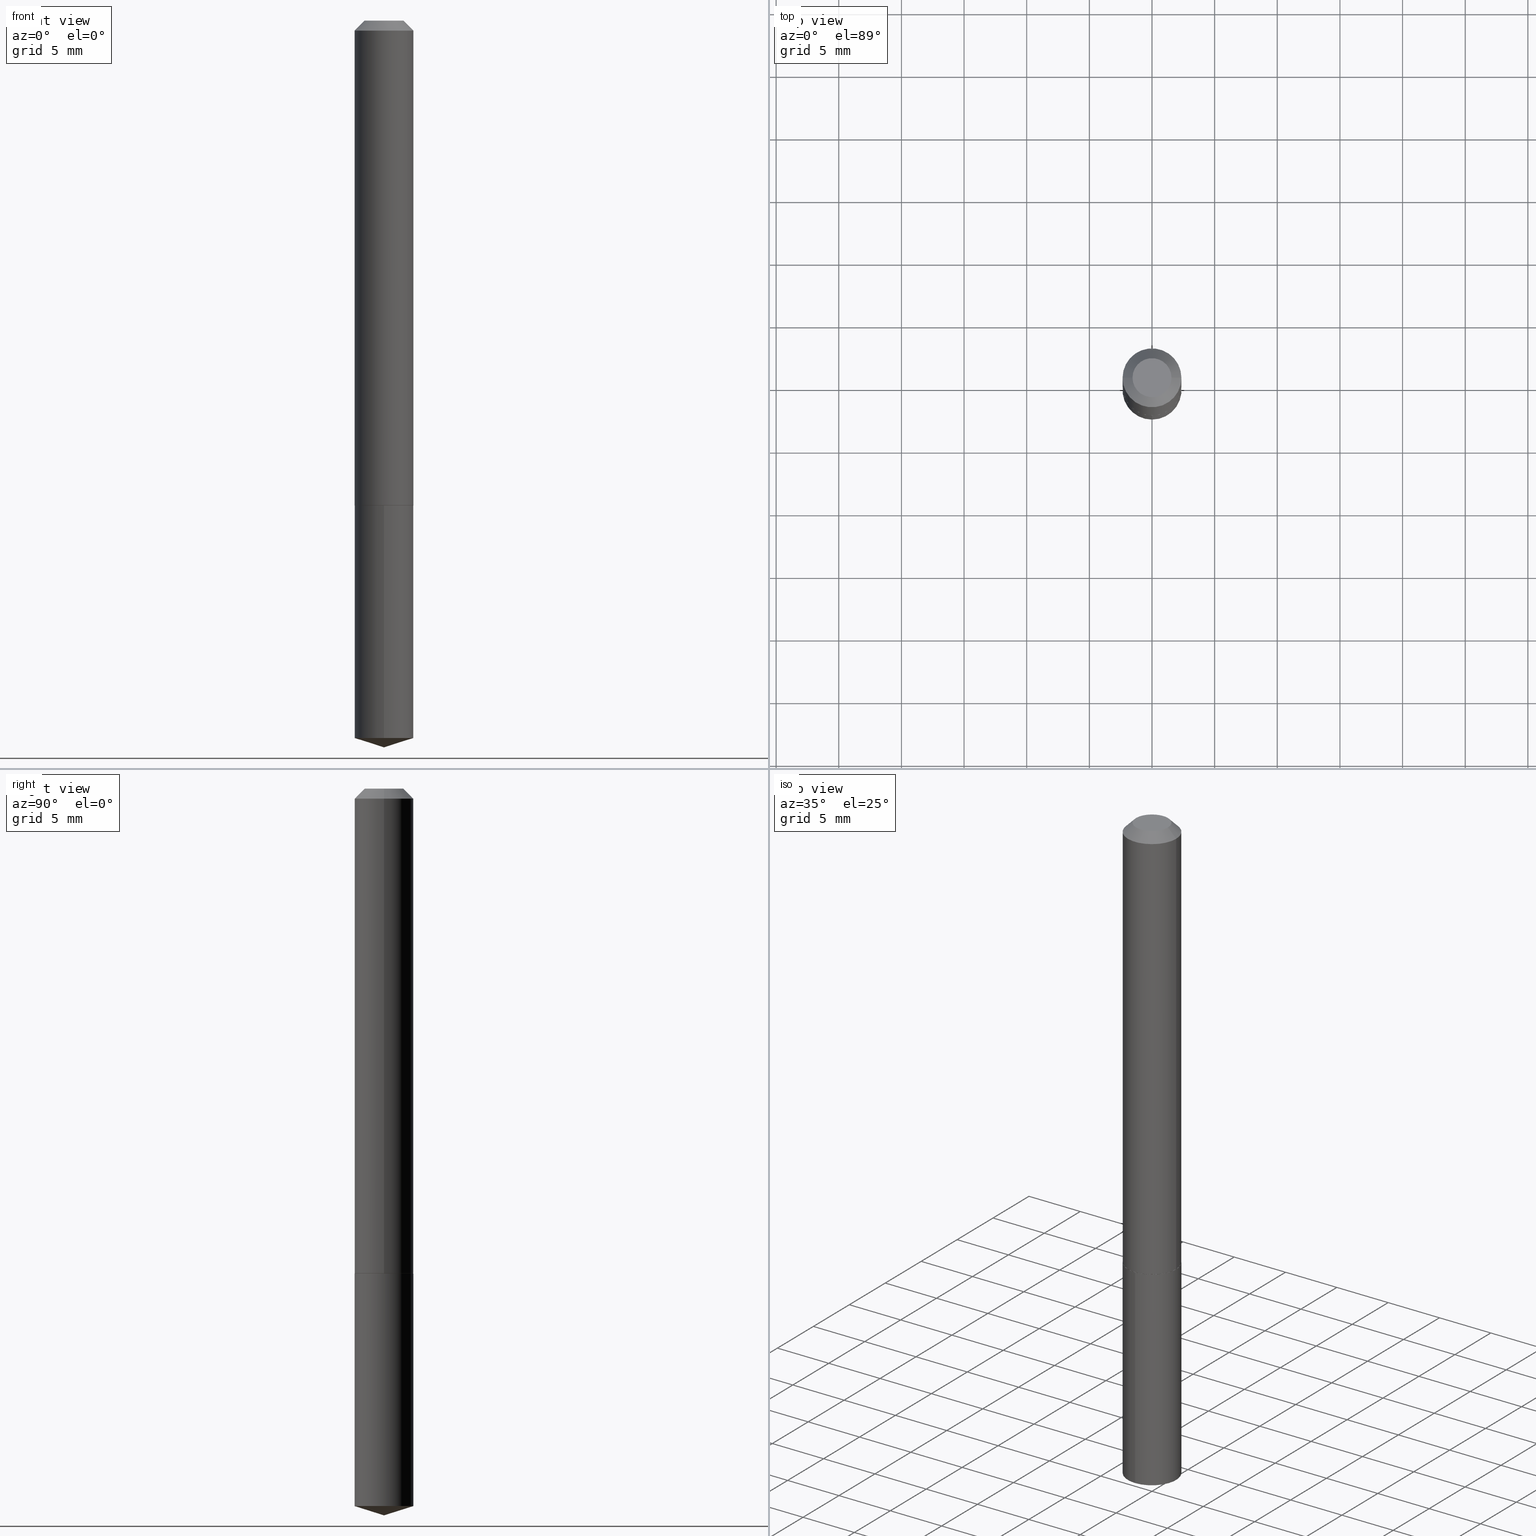
[diagram: canonical four-view strip — front | top / right | iso, engineering-drawing reading convention]
A machine part, canonical four-view strip (front | top / right | iso — engineering-drawing reading convention). The complete STEP part file that produces these views, byte-faithful:
ISO-10303-21;
HEADER;
FILE_DESCRIPTION (( 'STEP AP203' ),
    '1' );
FILE_NAME ('68695.STEP',
    '2024-04-23T13:40:18',
    ( '' ),
    ( '' ),
    'SwSTEP 2.0',
    'SolidWorks 2023',
    '' );
FILE_SCHEMA (( 'CONFIG_CONTROL_DESIGN' ));
ENDSEC;

DATA;
#1 = CARTESIAN_POINT ( 'NONE',  ( 0.000000000000000000, 0.000000000000000000, 0.000000000000000000 ) ) ;
#2 = UNCERTAINTY_MEASURE_WITH_UNIT (LENGTH_MEASURE( 1.000000000000000082E-05 ), #5, 'distance_accuracy_value', 'NONE');
#3 = FACE_OUTER_BOUND ( 'NONE', #69, .T. ) ;
#4 = ADVANCED_FACE ( 'NONE', ( #201 ), #78, .T. ) ;
#5 =( CONVERSION_BASED_UNIT ( 'INCH', #15 ) LENGTH_UNIT ( ) NAMED_UNIT ( #81 ) );
#6 = CIRCLE ( 'NONE', #129, 0.09249999999999999889 ) ;
#7 = VERTEX_POINT ( 'NONE', #26 ) ;
#8 = DIRECTION ( 'NONE',  ( 0.000000000000000000, 0.000000000000000000, 1.000000000000000000 ) ) ;
#9 = ORIENTED_EDGE ( 'NONE', *, *, #87, .T. ) ;
#10 = VERTEX_POINT ( 'NONE', #234 ) ;
#11 = ORIENTED_EDGE ( 'NONE', *, *, #294, .T. ) ;
#12 = CLOSED_SHELL ( 'NONE', ( #108, #236, #152, #135, #311 ) ) ;
#13 = AXIS2_PLACEMENT_3D ( 'NONE', #300, #295, #240 ) ;
#14 = CONICAL_SURFACE ( 'NONE', #79, 0.09249999999999999889, 0.7853981633974449483 ) ;
#15 = LENGTH_MEASURE_WITH_UNIT ( LENGTH_MEASURE( 0.02539999999999999897 ), #181 );
#16 = EDGE_LOOP ( 'NONE', ( #67, #93 ) ) ;
#17 = PERSON_AND_ORGANIZATION_ROLE ( 'creator' ) ;
#18 = DIRECTION ( 'NONE',  ( -6.982962677686265922E-15, -1.000000000000000000, 2.953349182339743999E-15 ) ) ;
#19 = ADVANCED_FACE ( 'NONE', ( #357 ), #204, .F. ) ;
#20 = CARTESIAN_POINT ( 'NONE',  ( 0.09249999999999999889, -7.437048566327158175E-16, -0.03125000000000020817 ) ) ;
#21 = CONICAL_SURFACE ( 'NONE', #238, 0.09250000000000017930, 0.7853981633970383847 ) ;
#22 = CIRCLE ( 'NONE', #334, 0.09250000000000017930 ) ;
#23 = CARTESIAN_POINT ( 'NONE',  ( 3.725916273103674139E-29, -5.319620967861417089E-15, -1.523600000000000065 ) ) ;
#24 = LINE ( 'NONE', #51, #115 ) ;
#25 = PERSON_AND_ORGANIZATION_ROLE ( 'classification_officer' ) ;
#26 = CARTESIAN_POINT ( 'NONE',  ( 0.06125000000000000583, -5.819551794981109879E-16, 2.388061258372631621E-19 ) ) ;
#27 = CONICAL_SURFACE ( 'NONE', #256, 124.8659371009166108, 1.265363707695895235 ) ;
#28 = LINE ( 'NONE', #332, #184 ) ;
#29 = DIRECTION ( 'NONE',  ( -2.445468806185136597E-29, 3.491481338843145583E-15, 1.000000000000000000 ) ) ;
#30 = DIRECTION ( 'NONE',  ( 1.000000000000000000, -6.982962677686272233E-15, 0.000000000000000000 ) ) ;
#31 = DIRECTION ( 'NONE',  ( 6.982962677686265922E-15, 1.000000000000000000, -3.491549371568351150E-15 ) ) ;
#32 = CARTESIAN_POINT ( 'NONE',  ( 5.584265569421684196E-29, -7.972745680656083802E-15, -2.283500000000000085 ) ) ;
#33 = DIRECTION ( 'NONE',  ( -2.445468806185136877E-29, 3.491481338843145188E-15, 1.000000000000000000 ) ) ;
#34 = AXIS2_PLACEMENT_3D ( 'NONE', #324, #330, #292 ) ;
#35 = ORIENTED_EDGE ( 'NONE', *, *, #179, .T. ) ;
#36 =( NAMED_UNIT ( * ) SI_UNIT ( $, .STERADIAN. ) SOLID_ANGLE_UNIT ( ) );
#37 = EDGE_LOOP ( 'NONE', ( #99, #246, #156, #41 ) ) ;
#38 = CARTESIAN_POINT ( 'NONE',  ( -0.09250000000000008216, 6.572520305780932557E-16, -4.550014958485792374E-30 ) ) ;
#39 = ORIENTED_EDGE ( 'NONE', *, *, #282, .T. ) ;
#40 = DATE_TIME_ROLE ( 'creation_date' ) ;
#41 = ORIENTED_EDGE ( 'NONE', *, *, #180, .F. ) ;
#42 = CIRCLE ( 'NONE', #267, 0.09249999999999999889 ) ;
#43 = APPROVAL_PERSON_ORGANIZATION ( #94, #265, #309 ) ;
#44 = ORIENTED_EDGE ( 'NONE', *, *, #196, .T. ) ;
#45 = PERSON ( 'UNSPECIFIED', 'UNSPECIFIED', 'UNSPECIFIED', ('UNSPECIFIED'), ('UNSPECIFIED'), ('UNSPECIFIED') ) ;
#46 = LINE ( 'NONE', #20, #333 ) ;
#47 = APPLICATION_CONTEXT ( 'configuration controlled 3d designs of mechanical parts and assemblies' ) ;
#48 = DIRECTION ( 'NONE',  ( -0.7071067811865451302, 2.468850131082231817E-15, -0.7071067811865499042 ) ) ;
#49 = VECTOR ( 'NONE', #258, 39.37007874015748143 ) ;
#50 = DIRECTION ( 'NONE',  ( -2.445421299187039407E-29, 3.491549371568351150E-15, 1.000000000000000000 ) ) ;
#51 = CARTESIAN_POINT ( 'NONE',  ( 0.09250000000000008216, -6.459240476859802821E-16, 4.510463517611244952E-30 ) ) ;
#52 = DIRECTION ( 'NONE',  ( 1.000000000000000000, -6.982962677686267499E-15, 4.876176775795936353E-29 ) ) ;
#53 = AXIS2_PLACEMENT_3D ( 'NONE', #147, #8, #119 ) ;
#54 = CARTESIAN_POINT ( 'NONE',  ( 0.09250000000000017930, -5.963799274877977150E-15, -1.523100000000000120 ) ) ;
#55 = CARTESIAN_POINT ( 'NONE',  ( -9.069223718349603288E-28, 1.294897243484771574E-13, 37.08657874015747780 ) ) ;
#56 = CARTESIAN_POINT ( 'NONE',  ( 7.642090019328602662E-31, -1.091087918388490267E-16, -0.03125000000000020817 ) ) ;
#57 = CONICAL_SURFACE ( 'NONE', #278, 0.09250000000000017930, 0.7853981633970383847 ) ;
#58 = VECTOR ( 'NONE', #143, 39.37007874015748854 ) ;
#59 = CARTESIAN_POINT ( 'NONE',  ( 0.000000000000000000, 0.000000000000000000, 0.000000000000000000 ) ) ;
#60 = PERSON_AND_ORGANIZATION ( #45, #293 ) ;
#61 = COORDINATED_UNIVERSAL_TIME_OFFSET ( 5, 0, .BEHIND. ) ;
#62 = ORIENTED_EDGE ( 'NONE', *, *, #64, .T. ) ;
#63 = EDGE_LOOP ( 'NONE', ( #120, #277, #187, #312 ) ) ;
#64 = EDGE_CURVE ( 'NONE', #7, #373, #46, .T. ) ;
#65 = ORIENTED_EDGE ( 'NONE', *, *, #336, .F. ) ;
#66 = CALENDAR_DATE ( 2024, 23, 4 ) ;
#67 = ORIENTED_EDGE ( 'NONE', *, *, #291, .T. ) ;
#68 = EDGE_CURVE ( 'NONE', #276, #373, #24, .T. ) ;
#69 = EDGE_LOOP ( 'NONE', ( #225, #222, #308, #123 ) ) ;
#70 = AXIS2_PLACEMENT_3D ( 'NONE', #319, #132, #136 ) ;
#71 = LOCAL_TIME ( 9, 40, 18.00000000000000000, #150 ) ;
#72 = APPROVAL_ROLE ( '' ) ;
#73 = FACE_OUTER_BOUND ( 'NONE', #372, .T. ) ;
#74 = DIRECTION ( 'NONE',  ( -6.982962677686265922E-15, -1.000000000000000000, 2.953349182339743999E-15 ) ) ;
#75 = COORDINATED_UNIVERSAL_TIME_OFFSET ( 5, 0, .BEHIND. ) ;
#76 = DIRECTION ( 'NONE',  ( -2.445468806185136597E-29, 3.491481338843145583E-15, 1.000000000000000000 ) ) ;
#77 = APPROVAL ( #281, 'UNSPECIFIED' ) ;
#78 = CONICAL_SURFACE ( 'NONE', #162, 0.09249999999999999889, 0.7853981633974449483 ) ;
#79 = AXIS2_PLACEMENT_3D ( 'NONE', #374, #125, #92 ) ;
#80 = LINE ( 'NONE', #288, #272 ) ;
#81 = DIMENSIONAL_EXPONENTS ( 1.000000000000000000, 0.000000000000000000, 0.000000000000000000, 0.000000000000000000, 0.000000000000000000, 0.000000000000000000, 0.000000000000000000 ) ;
#82 = ORIENTED_EDGE ( 'NONE', *, *, #351, .T. ) ;
#83 = DIRECTION ( 'NONE',  ( -6.982962677686265922E-15, -1.000000000000000000, 2.953349182339743999E-15 ) ) ;
#84 = VECTOR ( 'NONE', #33, 39.37007874015748143 ) ;
#85 = CARTESIAN_POINT ( 'NONE',  ( -0.06125000000000000583, 4.822608599277072228E-16, 2.388061258305517296E-19 ) ) ;
#86 = CARTESIAN_POINT ( 'NONE',  ( 3.724693538700582458E-29, -5.317875227191995586E-15, -1.523100000000000120 ) ) ;
#87 = EDGE_CURVE ( 'NONE', #178, #303, #220, .T. ) ;
#88 = CARTESIAN_POINT ( 'NONE',  ( 7.642090019328602662E-31, -1.091087918388490267E-16, -0.03125000000000020817 ) ) ;
#89 = AXIS2_PLACEMENT_3D ( 'NONE', #59, #331, #209 ) ;
#90 = DIRECTION ( 'NONE',  ( 1.000000000000000000, -6.982962677686266711E-15, 0.000000000000000000 ) ) ;
#91 = ORIENTED_EDGE ( 'NONE', *, *, #339, .T. ) ;
#92 = DIRECTION ( 'NONE',  ( -1.000000000000000000, 6.982962677686266711E-15, 0.000000000000000000 ) ) ;
#93 = ORIENTED_EDGE ( 'NONE', *, *, #208, .T. ) ;
#94 = PERSON_AND_ORGANIZATION ( #45, #293 ) ;
#95 = CC_DESIGN_DATE_AND_TIME_ASSIGNMENT ( #353, #131, ( #163 ) ) ;
#96 = ORIENTED_EDGE ( 'NONE', *, *, #366, .T. ) ;
#97 = AXIS2_PLACEMENT_3D ( 'NONE', #140, #263, #174 ) ;
#98 = PERSON_AND_ORGANIZATION ( #45, #293 ) ;
#99 = ORIENTED_EDGE ( 'NONE', *, *, #325, .T. ) ;
#100 = VERTEX_POINT ( 'NONE', #159 ) ;
#101 = CARTESIAN_POINT ( 'NONE',  ( -0.09249999999999999889, 5.368152558471306884E-16, -0.03125000000000020817 ) ) ;
#102 = DIRECTION ( 'NONE',  ( -2.445421299187039407E-29, 3.491549371568351150E-15, 1.000000000000000000 ) ) ;
#103 = CYLINDRICAL_SURFACE ( 'NONE', #365, 0.09249999999999999889 ) ;
#104 = CARTESIAN_POINT ( 'NONE',  ( 3.724693538700582458E-29, -5.317875227191995586E-15, -1.523100000000000120 ) ) ;
#105 = CC_DESIGN_SECURITY_CLASSIFICATION ( #163, ( #341 ) ) ;
#106 = DIRECTION ( 'NONE',  ( 1.000000000000000000, -6.982962677686272233E-15, 0.000000000000000000 ) ) ;
#107 = EDGE_CURVE ( 'NONE', #271, #276, #299, .T. ) ;
#108 = ADVANCED_FACE ( 'NONE', ( #73 ), #377, .T. ) ;
#109 = FACE_OUTER_BOUND ( 'NONE', #315, .T. ) ;
#110 = DIRECTION ( 'NONE',  ( -2.445468806185136597E-29, 3.491481338843145583E-15, 1.000000000000000000 ) ) ;
#111 = VECTOR ( 'NONE', #48, 39.37007874015748143 ) ;
#112 = FACE_OUTER_BOUND ( 'NONE', #350, .T. ) ;
#113 = LINE ( 'NONE', #32, #58 ) ;
#114 = CARTESIAN_POINT ( 'NONE',  ( -6.459240476859423182E-16, -0.09250000000000532796, -1.523599999999999843 ) ) ;
#115 = VECTOR ( 'NONE', #327, 39.37007874015748143 ) ;
#116 = CIRCLE ( 'NONE', #13, 0.09249999999999999889 ) ;
#117 = ORIENTED_EDGE ( 'NONE', *, *, #68, .F. ) ;
#118 = ADVANCED_FACE ( 'NONE', ( #317 ), #57, .T. ) ;
#119 = DIRECTION ( 'NONE',  ( 1.000000000000000000, 0.000000000000000000, 0.000000000000000000 ) ) ;
#120 = ORIENTED_EDGE ( 'NONE', *, *, #64, .F. ) ;
#121 = CC_DESIGN_PERSON_AND_ORGANIZATION_ASSIGNMENT ( #166, #25, ( #163 ) ) ;
#122 = APPLICATION_PROTOCOL_DEFINITION ( 'international standard', 'config_control_design', 1994, #211 ) ;
#123 = ORIENTED_EDGE ( 'NONE', *, *, #252, .F. ) ;
#124 = ORIENTED_EDGE ( 'NONE', *, *, #304, .T. ) ;
#125 = DIRECTION ( 'NONE',  ( 2.445468806185136597E-29, -3.491481338843145583E-15, -1.000000000000000000 ) ) ;
#126 = EDGE_LOOP ( 'NONE', ( #259, #343, #249 ) ) ;
#127 = DIRECTION ( 'NONE',  ( -6.982962677686267499E-15, -1.000000000000000000, 3.500519750498661045E-15 ) ) ;
#128 = CARTESIAN_POINT ( 'NONE',  ( -0.09250000000000017930, -4.660623196613901936E-15, -1.523100000000000120 ) ) ;
#129 = AXIS2_PLACEMENT_3D ( 'NONE', #56, #298, #90 ) ;
#130 =( GEOMETRIC_REPRESENTATION_CONTEXT ( 3 ) GLOBAL_UNCERTAINTY_ASSIGNED_CONTEXT ( ( #2 ) ) GLOBAL_UNIT_ASSIGNED_CONTEXT ( ( #5, #182, #36 ) ) REPRESENTATION_CONTEXT ( 'NONE', 'WORKASPACE' ) );
#131 = DATE_TIME_ROLE ( 'classification_date' ) ;
#132 = DIRECTION ( 'NONE',  ( 2.438088387897960049E-29, -3.491481338843145188E-15, -1.000000000000000000 ) ) ;
#133 = DIRECTION ( 'NONE',  ( -6.982962677686265922E-15, -1.000000000000000000, 2.953349182339743999E-15 ) ) ;
#134 = APPROVAL_DATE_TIME ( #257, #190 ) ;
#135 = ADVANCED_FACE ( 'NONE', ( #157 ), #103, .T. ) ;
#136 = DIRECTION ( 'NONE',  ( -1.000000000000000000, 6.982962677686265922E-15, -4.876176775795935793E-29 ) ) ;
#137 = CC_DESIGN_APPROVAL ( #265, ( #341 ) ) ;
#138 = DIRECTION ( 'NONE',  ( -6.982962677686267499E-15, -1.000000000000000000, 3.500519750498661045E-15 ) ) ;
#139 = PLANE ( 'NONE',  #329 ) ;
#140 = CARTESIAN_POINT ( 'NONE',  ( -5.839929314523175409E-48, 8.337871319499082469E-34, 2.388061258337334140E-19 ) ) ;
#141 = LOCAL_TIME ( 9, 40, 18.00000000000000000, #75 ) ;
#142 = DIRECTION ( 'NONE',  ( -2.445421299187039407E-29, 3.491549371568351150E-15, 1.000000000000000000 ) ) ;
#143 = DIRECTION ( 'NONE',  ( 6.776566513254265237E-15, 0.9537169507482298192, 0.3007057995042637932 ) ) ;
#144 = DIRECTION ( 'NONE',  ( -2.445468806185136597E-29, 3.491481338843145583E-15, 1.000000000000000000 ) ) ;
#145 = AXIS2_PLACEMENT_3D ( 'NONE', #286, #384, #165 ) ;
#146 = APPROVAL_PERSON_ORGANIZATION ( #158, #190, #72 ) ;
#147 = CARTESIAN_POINT ( 'NONE',  ( 0.000000000000000000, 0.000000000000000000, 0.000000000000000000 ) ) ;
#148 = ORIENTED_EDGE ( 'NONE', *, *, #179, .F. ) ;
#149 = MANIFOLD_SOLID_BREP ( 'Body-Move/Copy2[1]', #12 ) ;
#150 = COORDINATED_UNIVERSAL_TIME_OFFSET ( 5, 0, .BEHIND. ) ;
#151 = ORIENTED_EDGE ( 'NONE', *, *, #167, .F. ) ;
#152 = ADVANCED_FACE ( 'NONE', ( #323 ), #383, .T. ) ;
#153 = PERSON_AND_ORGANIZATION ( #45, #293 ) ;
#154 = VERTEX_POINT ( 'NONE', #255 ) ;
#155 = APPROVAL_DATE_TIME ( #191, #265 ) ;
#156 = ORIENTED_EDGE ( 'NONE', *, *, #366, .F. ) ;
#157 = FACE_OUTER_BOUND ( 'NONE', #338, .T. ) ;
#158 = PERSON_AND_ORGANIZATION ( #45, #293 ) ;
#159 = CARTESIAN_POINT ( 'NONE',  ( -0.09200000000000041478, -4.663272423788011559E-15, -1.523600000000000287 ) ) ;
#160 = EDGE_CURVE ( 'NONE', #273, #219, #232, .T. ) ;
#161 = DIRECTION ( 'NONE',  ( -2.445421299187039407E-29, 3.491549371568351150E-15, 1.000000000000000000 ) ) ;
#162 = AXIS2_PLACEMENT_3D ( 'NONE', #290, #260, #382 ) ;
#163 = SECURITY_CLASSIFICATION ( '', '', #254 ) ;
#164 = CC_DESIGN_PERSON_AND_ORGANIZATION_ASSIGNMENT ( #153, #302, ( #322 ) ) ;
#165 = DIRECTION ( 'NONE',  ( 1.000000000000000000, -6.982962677686272233E-15, 0.000000000000000000 ) ) ;
#166 = PERSON_AND_ORGANIZATION ( #45, #293 ) ;
#167 = EDGE_CURVE ( 'NONE', #100, #271, #229, .T. ) ;
#168 = ORIENTED_EDGE ( 'NONE', *, *, #87, .F. ) ;
#169 = DIRECTION ( 'NONE',  ( -2.445468806185136597E-29, 3.491481338843145583E-15, 1.000000000000000000 ) ) ;
#170 = AXIS2_PLACEMENT_3D ( 'NONE', #1, #110, #52 ) ;
#171 = CC_DESIGN_APPROVAL ( #190, ( #163 ) ) ;
#172 = PLANE ( 'NONE',  #305 ) ;
#173 = CYLINDRICAL_SURFACE ( 'NONE', #170, 0.09250000000000008216 ) ;
#174 = DIRECTION ( 'NONE',  ( 1.000000000000000000, -6.982962677686267499E-15, 4.876190086226892022E-29 ) ) ;
#175 = CLOSED_SHELL ( 'NONE', ( #388, #213, #274, #253, #118, #215, #4, #19 ) ) ;
#176 = LOCAL_TIME ( 9, 40, 18.00000000000000000, #318 ) ;
#177 = FACE_OUTER_BOUND ( 'NONE', #218, .T. ) ;
#178 = VERTEX_POINT ( 'NONE', #289 ) ;
#179 = EDGE_CURVE ( 'NONE', #375, #178, #356, .T. ) ;
#180 = EDGE_CURVE ( 'NONE', #310, #276, #80, .T. ) ;
#181 =( LENGTH_UNIT ( ) NAMED_UNIT ( * ) SI_UNIT ( $, .METRE. ) );
#182 =( NAMED_UNIT ( * ) PLANE_ANGLE_UNIT ( ) SI_UNIT ( $, .RADIAN. ) );
#183 = ORIENTED_EDGE ( 'NONE', *, *, #326, .T. ) ;
#184 = VECTOR ( 'NONE', #241, 39.37007874015748854 ) ;
#185 = AXIS2_PLACEMENT_3D ( 'NONE', #367, #342, #369 ) ;
#186 = APPROVAL_DATE_TIME ( #245, #77 ) ;
#187 = ORIENTED_EDGE ( 'NONE', *, *, #160, .T. ) ;
#188 = APPLICATION_PROTOCOL_DEFINITION ( 'international standard', 'config_control_design', 1994, #47 ) ;
#189 = ORIENTED_EDGE ( 'NONE', *, *, #227, .F. ) ;
#190 = APPROVAL ( #376, 'UNSPECIFIED' ) ;
#191 = DATE_AND_TIME ( #66, #314 ) ;
#192 = ORIENTED_EDGE ( 'NONE', *, *, #107, .F. ) ;
#193 = PERSON_AND_ORGANIZATION_ROLE ( 'design_supplier' ) ;
#194 = LOCAL_TIME ( 9, 40, 18.00000000000000000, #61 ) ;
#195 = ORIENTED_EDGE ( 'NONE', *, *, #326, .F. ) ;
#196 = EDGE_CURVE ( 'NONE', #375, #10, #42, .T. ) ;
#197 = DIRECTION ( 'NONE',  ( -6.982962677686265922E-15, -1.000000000000000000, 2.953349182339743999E-15 ) ) ;
#198 = PERSON_AND_ORGANIZATION ( #45, #293 ) ;
#199 = DIRECTION ( 'NONE',  ( -2.445421299187039407E-29, 3.491549371568351150E-15, 1.000000000000000000 ) ) ;
#200 = PRODUCT_RELATED_PRODUCT_CATEGORY ( 'detail', '', ( #322 ) ) ;
#201 = FACE_OUTER_BOUND ( 'NONE', #63, .T. ) ;
#202 = CARTESIAN_POINT ( 'NONE',  ( -9.069223718349603288E-28, 1.294897243484771574E-13, 37.08657874015747780 ) ) ;
#203 = CC_DESIGN_PERSON_AND_ORGANIZATION_ASSIGNMENT ( #198, #193, ( #341 ) ) ;
#204 = PLANE ( 'NONE',  #70 ) ;
#205 = CARTESIAN_POINT ( 'NONE',  ( -0.09250000000000017930, -4.660623196613901936E-15, -1.523100000000000120 ) ) ;
#206 = CIRCLE ( 'NONE', #34, 0.06125000000000000583 ) ;
#207 = CARTESIAN_POINT ( 'NONE',  ( -6.459240476859423182E-16, -0.09250000000000532796, -1.523599999999999843 ) ) ;
#208 = EDGE_CURVE ( 'NONE', #7, #273, #206, .T. ) ;
#209 = DIRECTION ( 'NONE',  ( 1.000000000000000000, -6.982962677686267499E-15, 4.876176775795936353E-29 ) ) ;
#210 = CC_DESIGN_PERSON_AND_ORGANIZATION_ASSIGNMENT ( #60, #307, ( #355 ) ) ;
#211 = APPLICATION_CONTEXT ( 'configuration controlled 3d designs of mechanical parts and assemblies' ) ;
#212 = CARTESIAN_POINT ( 'NONE',  ( 3.725916273103675260E-29, -5.319620967861417878E-15, -1.523600000000000287 ) ) ;
#213 = ADVANCED_FACE ( 'NONE', ( #177 ), #173, .T. ) ;
#214 = VECTOR ( 'NONE', #102, 39.37007874015748143 ) ;
#215 = ADVANCED_FACE ( 'NONE', ( #3 ), #297, .T. ) ;
#216 = FACE_OUTER_BOUND ( 'NONE', #126, .T. ) ;
#217 = FACE_OUTER_BOUND ( 'NONE', #244, .T. ) ;
#218 = EDGE_LOOP ( 'NONE', ( #96, #91, #226, #117 ) ) ;
#219 = VERTEX_POINT ( 'NONE', #268 ) ;
#220 = CIRCLE ( 'NONE', #347, 0.09249999999999999889 ) ;
#221 = APPROVAL_STATUS ( 'not_yet_approved' ) ;
#222 = ORIENTED_EDGE ( 'NONE', *, *, #107, .T. ) ;
#223 = CC_DESIGN_PERSON_AND_ORGANIZATION_ASSIGNMENT ( #228, #17, ( #341 ) ) ;
#224 = COORDINATED_UNIVERSAL_TIME_OFFSET ( 5, 0, .BEHIND. ) ;
#225 = ORIENTED_EDGE ( 'NONE', *, *, #339, .F. ) ;
#226 = ORIENTED_EDGE ( 'NONE', *, *, #304, .F. ) ;
#227 = EDGE_CURVE ( 'NONE', #303, #178, #378, .T. ) ;
#228 = PERSON_AND_ORGANIZATION ( #45, #293 ) ;
#229 = LINE ( 'NONE', #128, #49 ) ;
#230 = DIRECTION ( 'NONE',  ( 0.7071067811865451302, -7.319954787623248157E-15, -0.7071067811865499042 ) ) ;
#231 = DIRECTION ( 'NONE',  ( 0.7071067811862576935, -2.468850131079221129E-15, 0.7071067811868373409 ) ) ;
#232 = LINE ( 'NONE', #101, #111 ) ;
#233 = CC_DESIGN_APPROVAL ( #77, ( #355 ) ) ;
#234 = CARTESIAN_POINT ( 'NONE',  ( -6.459240476859242730E-16, -0.09250000000000783984, -2.254334862028694708 ) ) ;
#235 = DIRECTION ( 'NONE',  ( -2.438088387897960049E-29, 3.491481338843145188E-15, 1.000000000000000000 ) ) ;
#236 = ADVANCED_FACE ( 'NONE', ( #216 ), #27, .T. ) ;
#237 = DIRECTION ( 'NONE',  ( 1.000000000000000000, -6.982962677686269866E-15, 0.000000000000000000 ) ) ;
#238 = AXIS2_PLACEMENT_3D ( 'NONE', #86, #169, #30 ) ;
#239 = CIRCLE ( 'NONE', #321, 0.09200000000000041478 ) ;
#240 = DIRECTION ( 'NONE',  ( -6.982962677686265922E-15, -1.000000000000000000, 2.953349182339743999E-15 ) ) ;
#241 = DIRECTION ( 'NONE',  ( -6.659769872151639188E-15, -0.9537169507482275987, 0.3007057995042703991 ) ) ;
#242 = LINE ( 'NONE', #207, #306 ) ;
#243 = MECHANICAL_CONTEXT ( 'NONE', #47, 'mechanical' ) ;
#244 = EDGE_LOOP ( 'NONE', ( #346, #62, #124, #248 ) ) ;
#245 = DATE_AND_TIME ( #371, #194 ) ;
#246 = ORIENTED_EDGE ( 'NONE', *, *, #167, .T. ) ;
#247 = DATE_AND_TIME ( #275, #71 ) ;
#248 = ORIENTED_EDGE ( 'NONE', *, *, #160, .F. ) ;
#249 = ORIENTED_EDGE ( 'NONE', *, *, #294, .F. ) ;
#250 = CARTESIAN_POINT ( 'NONE',  ( 6.572520305781474899E-16, 0.09249999999999210243, -2.254334862028695152 ) ) ;
#251 = ORIENTED_EDGE ( 'NONE', *, *, #351, .F. ) ;
#252 = EDGE_CURVE ( 'NONE', #219, #373, #6, .T. ) ;
#253 = ADVANCED_FACE ( 'NONE', ( #112 ), #172, .F. ) ;
#254 = SECURITY_CLASSIFICATION_LEVEL ( 'unclassified' ) ;
#255 = CARTESIAN_POINT ( 'NONE',  ( 5.584119536693605693E-29, -7.972952989976330789E-15, -2.283500000000000085 ) ) ;
#256 = AXIS2_PLACEMENT_3D ( 'NONE', #55, #328, #138 ) ;
#257 = DATE_AND_TIME ( #381, #141 ) ;
#258 = DIRECTION ( 'NONE',  ( -0.7071067811862576935, 7.493145998869306553E-15, 0.7071067811868373409 ) ) ;
#259 = ORIENTED_EDGE ( 'NONE', *, *, #282, .F. ) ;
#260 = DIRECTION ( 'NONE',  ( 2.445468806185136597E-29, -3.491481338843145583E-15, -1.000000000000000000 ) ) ;
#261 = CARTESIAN_POINT ( 'NONE',  ( 3.725916273103674139E-29, -5.319620967861417089E-15, -1.523600000000000065 ) ) ;
#262 = CIRCLE ( 'NONE', #361, 0.09249999999999999889 ) ;
#263 = DIRECTION ( 'NONE',  ( -2.445468806185136597E-29, 3.491481338843145583E-15, 1.000000000000000000 ) ) ;
#264 = CARTESIAN_POINT ( 'NONE',  ( 3.725916273103674139E-29, -5.319620967861417089E-15, -1.523600000000000065 ) ) ;
#265 = APPROVAL ( #221, 'UNSPECIFIED' ) ;
#266 = DIRECTION ( 'NONE',  ( 2.445421299187039127E-29, -3.491549371568351150E-15, -1.000000000000000000 ) ) ;
#267 = AXIS2_PLACEMENT_3D ( 'NONE', #354, #50, #133 ) ;
#268 = CARTESIAN_POINT ( 'NONE',  ( -0.09249999999999999889, -2.056239978937328693E-15, -0.03125000000000020817 ) ) ;
#269 = LINE ( 'NONE', #38, #84 ) ;
#270 = CARTESIAN_POINT ( 'NONE',  ( 0.09249999999999999889, -7.550328395248287911E-16, -0.03125000000000020817 ) ) ;
#271 = VERTEX_POINT ( 'NONE', #205 ) ;
#272 = VECTOR ( 'NONE', #231, 39.37007874015748143 ) ;
#273 = VERTEX_POINT ( 'NONE', #85 ) ;
#274 = ADVANCED_FACE ( 'NONE', ( #386 ), #21, .T. ) ;
#275 = CALENDAR_DATE ( 2024, 23, 4 ) ;
#276 = VERTEX_POINT ( 'NONE', #54 ) ;
#277 = ORIENTED_EDGE ( 'NONE', *, *, #291, .F. ) ;
#278 = AXIS2_PLACEMENT_3D ( 'NONE', #104, #76, #106 ) ;
#279 = CIRCLE ( 'NONE', #97, 0.06125000000000000583 ) ;
#280 = PRODUCT_DEFINITION_SHAPE ( 'NONE', 'NONE',  #355 ) ;
#281 = APPROVAL_STATUS ( 'not_yet_approved' ) ;
#282 = EDGE_CURVE ( 'NONE', #154, #10, #28, .T. ) ;
#283 = EDGE_LOOP ( 'NONE', ( #65, #39, #301 ) ) ;
#284 = MANIFOLD_SOLID_BREP ( 'Body-Move/Copy2[2]', #175 ) ;
#285 = CARTESIAN_POINT ( 'NONE',  ( 3.725916273103674139E-29, -5.319620967861417089E-15, -1.523600000000000065 ) ) ;
#286 = CARTESIAN_POINT ( 'NONE',  ( 3.724693538700582458E-29, -5.317875227191995586E-15, -1.523100000000000120 ) ) ;
#287 = CIRCLE ( 'NONE', #185, 0.09200000000000041478 ) ;
#288 = CARTESIAN_POINT ( 'NONE',  ( 0.09250000000000017930, -5.963799274877977150E-15, -1.523100000000000120 ) ) ;
#289 = CARTESIAN_POINT ( 'NONE',  ( 6.572520305781478843E-16, 0.09249999999999469757, -1.523600000000000287 ) ) ;
#290 = CARTESIAN_POINT ( 'NONE',  ( 7.642090019328602662E-31, -1.091087918388490267E-16, -0.03125000000000020817 ) ) ;
#291 = EDGE_CURVE ( 'NONE', #273, #7, #279, .T. ) ;
#292 = DIRECTION ( 'NONE',  ( 1.000000000000000000, -6.982962677686267499E-15, 4.876190086226892022E-29 ) ) ;
#293 = ORGANIZATION ( 'UNSPECIFIED', 'UNSPECIFIED', '' ) ;
#294 = EDGE_CURVE ( 'NONE', #10, #375, #116, .T. ) ;
#295 = DIRECTION ( 'NONE',  ( -2.445421299187039407E-29, 3.491549371568351150E-15, 1.000000000000000000 ) ) ;
#296 = ADVANCED_BREP_SHAPE_REPRESENTATION ( '68695', ( #149, #284, #53 ), #130 ) ;
#297 = CYLINDRICAL_SURFACE ( 'NONE', #89, 0.09250000000000008216 ) ;
#298 = DIRECTION ( 'NONE',  ( -2.445468806185136597E-29, 3.491481338843145583E-15, 1.000000000000000000 ) ) ;
#299 = CIRCLE ( 'NONE', #145, 0.09250000000000017930 ) ;
#300 = CARTESIAN_POINT ( 'NONE',  ( 5.512870868767147067E-29, -7.871017816160790927E-15, -2.254334862028694708 ) ) ;
#301 = ORIENTED_EDGE ( 'NONE', *, *, #196, .F. ) ;
#302 = PERSON_AND_ORGANIZATION_ROLE ( 'design_owner' ) ;
#303 = VERTEX_POINT ( 'NONE', #114 ) ;
#304 = EDGE_CURVE ( 'NONE', #373, #219, #262, .T. ) ;
#305 = AXIS2_PLACEMENT_3D ( 'NONE', #385, #235, #363 ) ;
#306 = VECTOR ( 'NONE', #142, 39.37007874015748143 ) ;
#307 = PERSON_AND_ORGANIZATION_ROLE ( 'creator' ) ;
#308 = ORIENTED_EDGE ( 'NONE', *, *, #68, .T. ) ;
#309 = APPROVAL_ROLE ( '' ) ;
#310 = VERTEX_POINT ( 'NONE', #362 ) ;
#311 = ADVANCED_FACE ( 'NONE', ( #109 ), #139, .F. ) ;
#312 = ORIENTED_EDGE ( 'NONE', *, *, #252, .T. ) ;
#313 = AXIS2_PLACEMENT_3D ( 'NONE', #360, #390, #83 ) ;
#314 = LOCAL_TIME ( 9, 40, 18.00000000000000000, #224 ) ;
#315 = EDGE_LOOP ( 'NONE', ( #345, #9 ) ) ;
#316 = SHAPE_DEFINITION_REPRESENTATION ( #280, #296 ) ;
#317 = FACE_OUTER_BOUND ( 'NONE', #370, .T. ) ;
#318 = COORDINATED_UNIVERSAL_TIME_OFFSET ( 5, 0, .BEHIND. ) ;
#319 = CARTESIAN_POINT ( 'NONE',  ( -2.919964657261587705E-48, 4.168935659749541235E-34, 1.194030629168667070E-19 ) ) ;
#320 = AXIS2_PLACEMENT_3D ( 'NONE', #202, #352, #127 ) ;
#321 = AXIS2_PLACEMENT_3D ( 'NONE', #212, #364, #237 ) ;
#322 = PRODUCT ( '68695', '68695', '', ( #243 ) ) ;
#323 = FACE_OUTER_BOUND ( 'NONE', #283, .T. ) ;
#324 = CARTESIAN_POINT ( 'NONE',  ( -5.839929314523175409E-48, 8.337871319499082469E-34, 2.388061258337334140E-19 ) ) ;
#325 = EDGE_CURVE ( 'NONE', #310, #100, #239, .T. ) ;
#326 = EDGE_CURVE ( 'NONE', #10, #303, #242, .T. ) ;
#327 = DIRECTION ( 'NONE',  ( -2.445468806185136877E-29, 3.491481338843145188E-15, 1.000000000000000000 ) ) ;
#328 = DIRECTION ( 'NONE',  ( -2.445421299187039407E-29, 3.491549371568351150E-15, 1.000000000000000000 ) ) ;
#329 = AXIS2_PLACEMENT_3D ( 'NONE', #264, #266, #31 ) ;
#330 = DIRECTION ( 'NONE',  ( -2.445468806185136597E-29, 3.491481338843145583E-15, 1.000000000000000000 ) ) ;
#331 = DIRECTION ( 'NONE',  ( -2.445468806185136597E-29, 3.491481338843145583E-15, 1.000000000000000000 ) ) ;
#332 = CARTESIAN_POINT ( 'NONE',  ( 5.584119536693604572E-29, -7.972952989976330789E-15, -2.283500000000000085 ) ) ;
#333 = VECTOR ( 'NONE', #230, 39.37007874015748143 ) ;
#334 = AXIS2_PLACEMENT_3D ( 'NONE', #337, #144, #344 ) ;
#335 = APPROVAL_ROLE ( '' ) ;
#336 = EDGE_CURVE ( 'NONE', #154, #375, #113, .T. ) ;
#337 = CARTESIAN_POINT ( 'NONE',  ( 3.724693538700582458E-29, -5.317875227191995586E-15, -1.523100000000000120 ) ) ;
#338 = EDGE_LOOP ( 'NONE', ( #148, #44, #183, #168 ) ) ;
#339 = EDGE_CURVE ( 'NONE', #271, #219, #269, .T. ) ;
#340 = ORIENTED_EDGE ( 'NONE', *, *, #325, .F. ) ;
#341 = PRODUCT_DEFINITION_FORMATION_WITH_SPECIFIED_SOURCE ( 'ANY', '', #322, .NOT_KNOWN. ) ;
#342 = DIRECTION ( 'NONE',  ( -2.445468806185136597E-29, 3.491481338843145583E-15, 1.000000000000000000 ) ) ;
#343 = ORIENTED_EDGE ( 'NONE', *, *, #336, .T. ) ;
#344 = DIRECTION ( 'NONE',  ( 1.000000000000000000, -6.982962677686272233E-15, 0.000000000000000000 ) ) ;
#345 = ORIENTED_EDGE ( 'NONE', *, *, #227, .T. ) ;
#346 = ORIENTED_EDGE ( 'NONE', *, *, #208, .F. ) ;
#347 = AXIS2_PLACEMENT_3D ( 'NONE', #23, #161, #197 ) ;
#348 = APPROVAL_PERSON_ORGANIZATION ( #98, #77, #335 ) ;
#349 = CALENDAR_DATE ( 2024, 23, 4 ) ;
#350 = EDGE_LOOP ( 'NONE', ( #340, #251 ) ) ;
#351 = EDGE_CURVE ( 'NONE', #100, #310, #287, .T. ) ;
#352 = DIRECTION ( 'NONE',  ( -2.445421299187039407E-29, 3.491549371568351150E-15, 1.000000000000000000 ) ) ;
#353 = DATE_AND_TIME ( #349, #176 ) ;
#354 = CARTESIAN_POINT ( 'NONE',  ( 5.512870868767147067E-29, -7.871017816160790927E-15, -2.254334862028694708 ) ) ;
#355 = PRODUCT_DEFINITION ( 'UNKNOWN', '', #341, #387 ) ;
#356 = LINE ( 'NONE', #379, #214 ) ;
#357 = FACE_OUTER_BOUND ( 'NONE', #16, .T. ) ;
#358 = CC_DESIGN_DATE_AND_TIME_ASSIGNMENT ( #247, #40, ( #355 ) ) ;
#359 = DIRECTION ( 'NONE',  ( 1.000000000000000000, -6.982962677686266711E-15, 0.000000000000000000 ) ) ;
#360 = CARTESIAN_POINT ( 'NONE',  ( 3.725916273103674139E-29, -5.319620967861417089E-15, -1.523600000000000065 ) ) ;
#361 = AXIS2_PLACEMENT_3D ( 'NONE', #88, #29, #359 ) ;
#362 = CARTESIAN_POINT ( 'NONE',  ( 0.09200000000000041478, -5.962053534208557224E-15, -1.523600000000000287 ) ) ;
#363 = DIRECTION ( 'NONE',  ( 1.000000000000000000, -6.982962677686265922E-15, 4.876176775795935793E-29 ) ) ;
#364 = DIRECTION ( 'NONE',  ( -2.445468806185136597E-29, 3.491481338843145583E-15, 1.000000000000000000 ) ) ;
#365 = AXIS2_PLACEMENT_3D ( 'NONE', #285, #199, #18 ) ;
#366 = EDGE_CURVE ( 'NONE', #276, #271, #22, .T. ) ;
#367 = CARTESIAN_POINT ( 'NONE',  ( 3.725916273103675260E-29, -5.319620967861417878E-15, -1.523600000000000287 ) ) ;
#368 = ORIENTED_EDGE ( 'NONE', *, *, #180, .T. ) ;
#369 = DIRECTION ( 'NONE',  ( 1.000000000000000000, -6.982962677686269866E-15, 0.000000000000000000 ) ) ;
#370 = EDGE_LOOP ( 'NONE', ( #151, #82, #368, #192 ) ) ;
#371 = CALENDAR_DATE ( 2024, 23, 4 ) ;
#372 = EDGE_LOOP ( 'NONE', ( #11, #35, #189, #195 ) ) ;
#373 = VERTEX_POINT ( 'NONE', #270 ) ;
#374 = CARTESIAN_POINT ( 'NONE',  ( 7.642090019328602662E-31, -1.091087918388490267E-16, -0.03125000000000020817 ) ) ;
#375 = VERTEX_POINT ( 'NONE', #250 ) ;
#376 = APPROVAL_STATUS ( 'not_yet_approved' ) ;
#377 = CYLINDRICAL_SURFACE ( 'NONE', #389, 0.09249999999999999889 ) ;
#378 = CIRCLE ( 'NONE', #313, 0.09249999999999999889 ) ;
#379 = CARTESIAN_POINT ( 'NONE',  ( 6.572520305781298391E-16, 0.09249999999999466982, -1.523600000000000287 ) ) ;
#380 = DIRECTION ( 'NONE',  ( -2.445421299187039407E-29, 3.491549371568351150E-15, 1.000000000000000000 ) ) ;
#381 = CALENDAR_DATE ( 2024, 23, 4 ) ;
#382 = DIRECTION ( 'NONE',  ( -1.000000000000000000, 6.982962677686266711E-15, 0.000000000000000000 ) ) ;
#383 = CONICAL_SURFACE ( 'NONE', #320, 124.8659371009166108, 1.265363707695895235 ) ;
#384 = DIRECTION ( 'NONE',  ( -2.445468806185136597E-29, 3.491481338843145583E-15, 1.000000000000000000 ) ) ;
#385 = CARTESIAN_POINT ( 'NONE',  ( 5.666997800370484612E-30, -9.843798797368878847E-15, -1.523600000000000065 ) ) ;
#386 = FACE_OUTER_BOUND ( 'NONE', #37, .T. ) ;
#387 = DESIGN_CONTEXT ( 'detailed design', #211, 'design' ) ;
#388 = ADVANCED_FACE ( 'NONE', ( #217 ), #14, .T. ) ;
#389 = AXIS2_PLACEMENT_3D ( 'NONE', #261, #380, #74 ) ;
#390 = DIRECTION ( 'NONE',  ( -2.445421299187039407E-29, 3.491549371568351150E-15, 1.000000000000000000 ) ) ;
ENDSEC;
END-ISO-10303-21;
